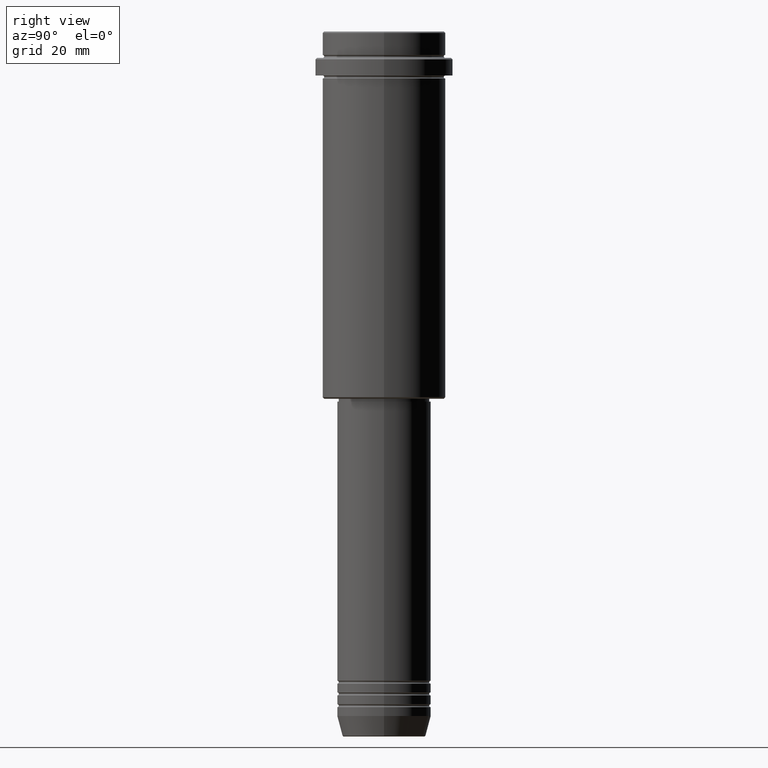
[diagram: clean part render]
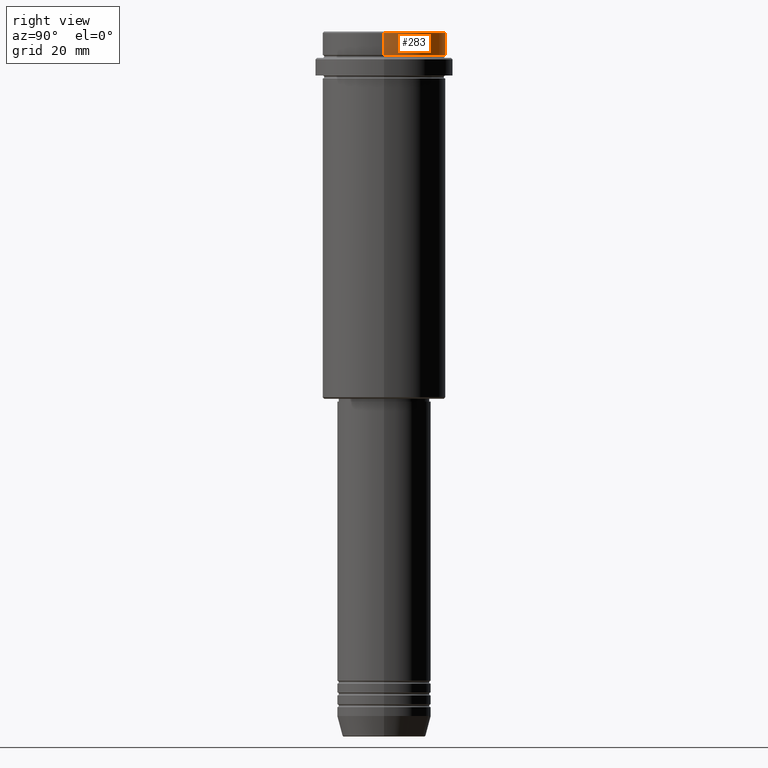
[diagram: same view with one face highlighted and labeled with its STEP entity id]
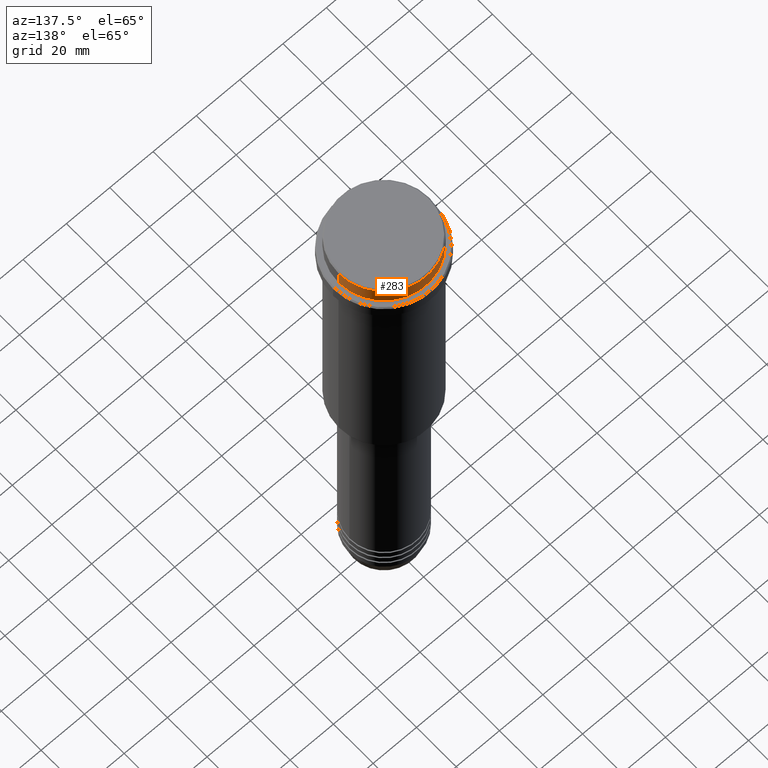
[diagram: same view with one face highlighted and labeled with its STEP entity id]
A machine part, right view. The second image highlights one B-rep face of the part: STEP entity #283.
A second angle (auxiliary view) of the same face is appended — the face is thin or edge-on in the first view.
In plain terms, the highlighted cylindrical surface (partial cylindrical patch) has radius 21 mm, axis along (-0, -0, 1).
Its self-contained STEP definition (entity closure, byte-faithful):
#32 = AXIS2_PLACEMENT_3D ( 'NONE', #1198, #901, #230 ) ;
#36 = DIRECTION ( 'NONE',  ( -0.000000000000000000, -0.000000000000000000, 1.000000000000000000 ) ) ;
#55 = CIRCLE ( 'NONE', #575, 21.00000000000000000 ) ;
#158 = VERTEX_POINT ( 'NONE', #1353 ) ;
#180 = EDGE_LOOP ( 'NONE', ( #430, #1058, #933, #753 ) ) ;
#230 = DIRECTION ( 'NONE',  ( 1.000000000000000000, 0.000000000000000000, 0.000000000000000000 ) ) ;
#283 = ADVANCED_FACE ( 'NONE', ( #494 ), #1375, .T. ) ;
#386 = CARTESIAN_POINT ( 'NONE',  ( 0.000000000000000000, 0.000000000000000000, 0.000000000000000000 ) ) ;
#430 = ORIENTED_EDGE ( 'NONE', *, *, #1372, .T. ) ;
#470 = VERTEX_POINT ( 'NONE', #1006 ) ;
#494 = FACE_OUTER_BOUND ( 'NONE', #180, .T. ) ;
#564 = CARTESIAN_POINT ( 'NONE',  ( -21.00000000000000000, 2.571758278209441661E-15, -7.999999999999998224 ) ) ;
#570 = EDGE_CURVE ( 'NONE', #470, #676, #650, .T. ) ;
#573 = VECTOR ( 'NONE', #1203, 1000.000000000000000 ) ;
#575 = AXIS2_PLACEMENT_3D ( 'NONE', #931, #1251, #1023 ) ;
#643 = CARTESIAN_POINT ( 'NONE',  ( -21.00000000000000000, 2.571758278209441661E-15, 0.000000000000000000 ) ) ;
#650 = LINE ( 'NONE', #1396, #1159 ) ;
#676 = VERTEX_POINT ( 'NONE', #1327 ) ;
#731 = CIRCLE ( 'NONE', #32, 21.00000000000000000 ) ;
#753 = ORIENTED_EDGE ( 'NONE', *, *, #570, .F. ) ;
#901 = DIRECTION ( 'NONE',  ( -0.000000000000000000, -0.000000000000000000, 1.000000000000000000 ) ) ;
#931 = CARTESIAN_POINT ( 'NONE',  ( 0.000000000000000000, 0.000000000000000000, -0.5000000000000663913 ) ) ;
#933 = ORIENTED_EDGE ( 'NONE', *, *, #1132, .T. ) ;
#1006 = CARTESIAN_POINT ( 'NONE',  ( 21.00000000000000000, 0.000000000000000000, -7.999999999999998224 ) ) ;
#1022 = AXIS2_PLACEMENT_3D ( 'NONE', #386, #36, #1031 ) ;
#1023 = DIRECTION ( 'NONE',  ( 1.000000000000000000, 0.000000000000000000, 0.000000000000000000 ) ) ;
#1027 = EDGE_CURVE ( 'NONE', #1378, #158, #1406, .T. ) ;
#1031 = DIRECTION ( 'NONE',  ( 1.000000000000000000, 0.000000000000000000, 0.000000000000000000 ) ) ;
#1058 = ORIENTED_EDGE ( 'NONE', *, *, #1027, .T. ) ;
#1082 = DIRECTION ( 'NONE',  ( -0.000000000000000000, -0.000000000000000000, 1.000000000000000000 ) ) ;
#1132 = EDGE_CURVE ( 'NONE', #158, #676, #55, .T. ) ;
#1159 = VECTOR ( 'NONE', #1082, 1000.000000000000000 ) ;
#1198 = CARTESIAN_POINT ( 'NONE',  ( 0.000000000000000000, 0.000000000000000000, -7.999999999999998224 ) ) ;
#1203 = DIRECTION ( 'NONE',  ( -0.000000000000000000, -0.000000000000000000, 1.000000000000000000 ) ) ;
#1251 = DIRECTION ( 'NONE',  ( 0.000000000000000000, 0.000000000000000000, -1.000000000000000000 ) ) ;
#1327 = CARTESIAN_POINT ( 'NONE',  ( 21.00000000000000000, 0.000000000000000000, -0.5000000000000663913 ) ) ;
#1353 = CARTESIAN_POINT ( 'NONE',  ( -21.00000000000000000, 2.571758278209441661E-15, -0.5000000000000663913 ) ) ;
#1372 = EDGE_CURVE ( 'NONE', #470, #1378, #731, .T. ) ;
#1375 = CYLINDRICAL_SURFACE ( 'NONE', #1022, 21.00000000000000000 ) ;
#1378 = VERTEX_POINT ( 'NONE', #564 ) ;
#1396 = CARTESIAN_POINT ( 'NONE',  ( 21.00000000000000000, 0.000000000000000000, 0.000000000000000000 ) ) ;
#1406 = LINE ( 'NONE', #643, #573 ) ;